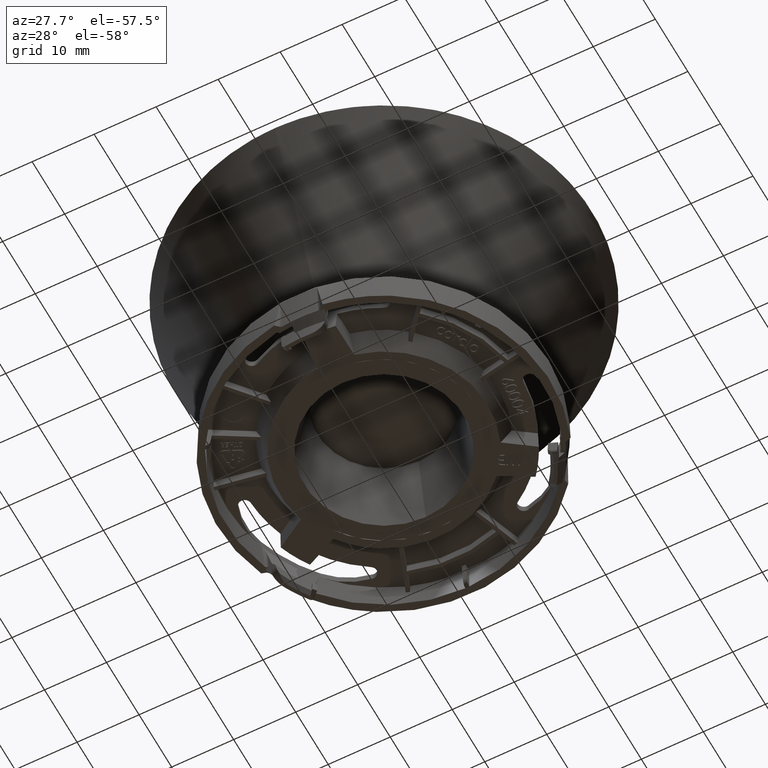
[diagram: clean part render]
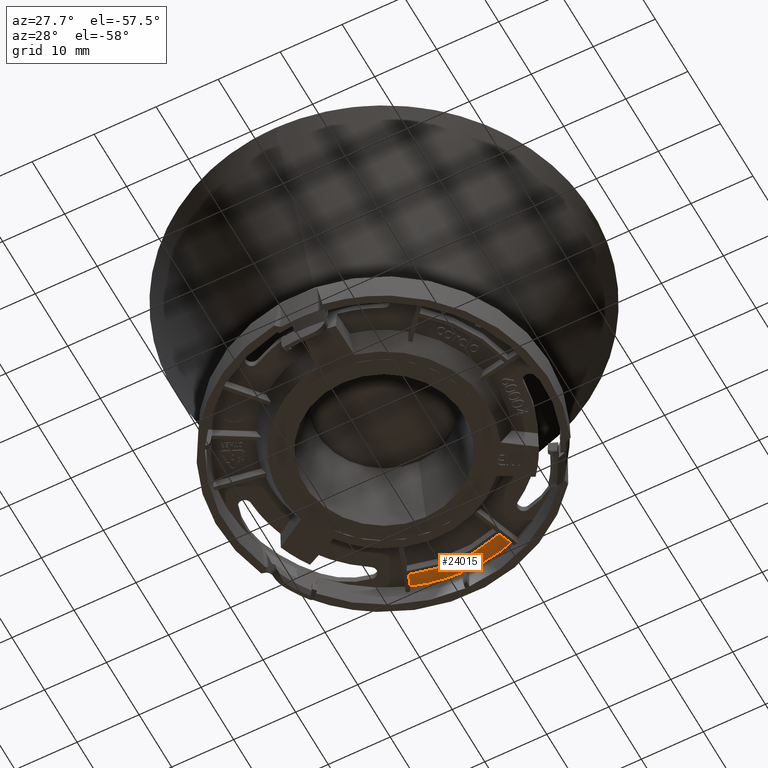
[diagram: same view with one face highlighted and labeled with its STEP entity id]
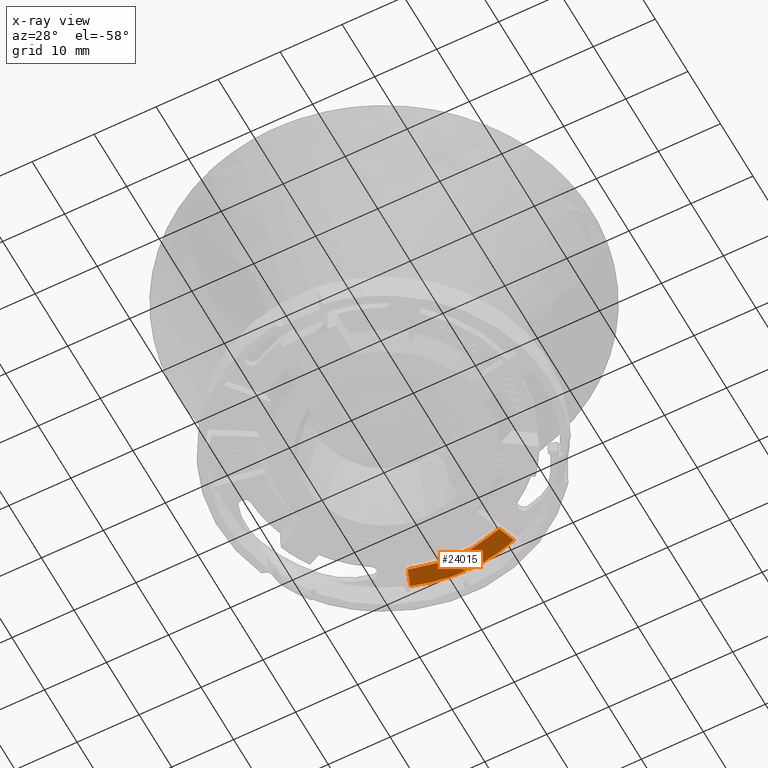
[diagram: x-ray of the same camera — body ghosted, the highlighted face saturated]
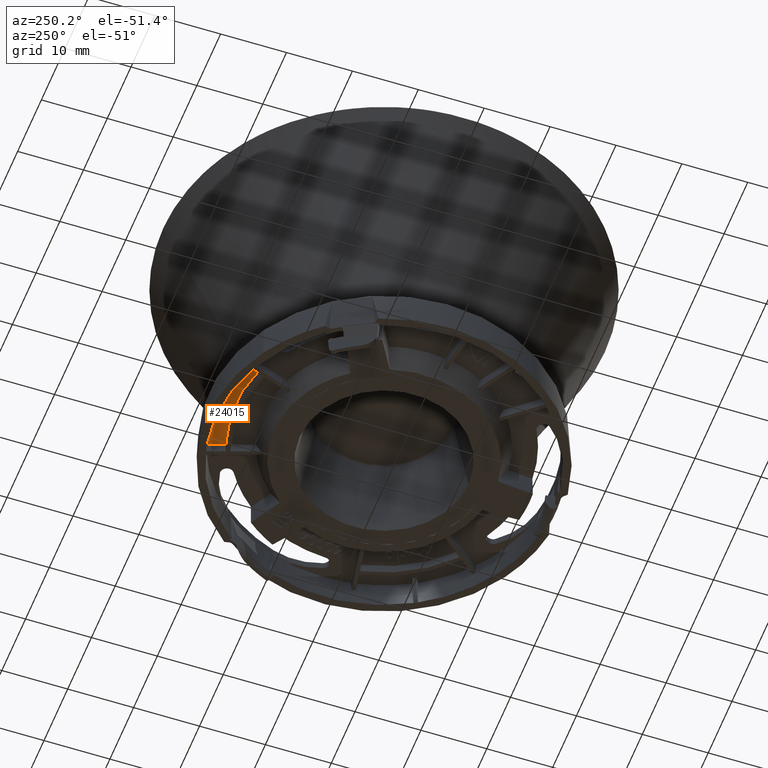
[diagram: same view with one face highlighted and labeled with its STEP entity id]
A machine part, auxiliary view. The second image highlights one B-rep face of the part: STEP entity #24015.
The next image is the same camera in x-ray: the body ghosted, the highlighted face saturated — about 0% of this face is hidden behind the body in this view.
A second angle (auxiliary view) of the same face is appended — the face is thin or edge-on in the first view.
In plain terms, the highlighted planar face has unit normal (0, 0, -1).
Its self-contained STEP definition (entity closure, byte-faithful):
#16 = DIRECTION ( 'NONE',  ( -0.4999999999999919500, -0.8660254037844432600, 0.0000000000000000000 ) ) ;
#110 = EDGE_CURVE ( 'NONE', #28848, #8737, #25101, .T. ) ;
#446 = CARTESIAN_POINT ( 'NONE',  ( 0.2999999999999227700, 24.42196238669079000, -3.299999999999998900 ) ) ;
#475 = DIRECTION ( 'NONE',  ( -0.3420201433256829200, 0.9396926207859032100, -0.0000000000000000000 ) ) ;
#1324 = EDGE_CURVE ( 'NONE', #3198, #8737, #22240, .T. ) ;
#1519 = CIRCLE ( 'NONE', #2665, 25.40124990929422600 ) ;
#1949 = DIRECTION ( 'NONE',  ( 0.05194690859252233000, 0.9986498478884779900, -0.0000000000000000000 ) ) ;
#2182 = VECTOR ( 'NONE', #475, 1000.000000000000100 ) ;
#2345 = CARTESIAN_POINT ( 'NONE',  ( -2.204364238465239300E-016, 0.0000000000000000000, -3.299999999999999800 ) ) ;
#2665 = AXIS2_PLACEMENT_3D ( 'NONE', #22761, #9230, #25040 ) ;
#3198 = VERTEX_POINT ( 'NONE', #12151 ) ;
#3963 = EDGE_CURVE ( 'NONE', #4081, #28848, #7368, .T. ) ;
#4066 = LINE ( 'NONE', #10224, #9319 ) ;
#4081 = VERTEX_POINT ( 'NONE', #446 ) ;
#4166 = ORIENTED_EDGE ( 'NONE', *, *, #27379, .F. ) ;
#4470 = EDGE_LOOP ( 'NONE', ( #13595, #4166, #6202, #19047, #13107, #25045, #11043, #15696 ) ) ;
#4620 = DIRECTION ( 'NONE',  ( 1.000000000000000000, 1.776356839400250500E-015, 0.0000000000000000000 ) ) ;
#4913 = VERTEX_POINT ( 'NONE', #20920 ) ;
#5521 = CARTESIAN_POINT ( 'NONE',  ( 0.0000000000000000000, -0.0000000000000000000, -3.299999999999997200 ) ) ;
#5777 = CARTESIAN_POINT ( 'NONE',  ( -7.581822303171009800E-014, 24.42196238669078700, -3.299999999999999800 ) ) ;
#6202 = ORIENTED_EDGE ( 'NONE', *, *, #20056, .T. ) ;
#7144 = FACE_OUTER_BOUND ( 'NONE', #4470, .T. ) ;
#7368 = LINE ( 'NONE', #24846, #18682 ) ;
#7382 = CIRCLE ( 'NONE', #10425, 22.60063511576303300 ) ;
#8737 = VERTEX_POINT ( 'NONE', #18042 ) ;
#9230 = DIRECTION ( 'NONE',  ( 0.0000000000000000000, 0.0000000000000000000, -1.000000000000000000 ) ) ;
#9319 = VECTOR ( 'NONE', #12492, 1000.000000000000100 ) ;
#10224 = CARTESIAN_POINT ( 'NONE',  ( 0.9677421278151605600, 0.05033917740141419900, -3.299999999999999800 ) ) ;
#10425 = AXIS2_PLACEMENT_3D ( 'NONE', #2345, #18147, #4620 ) ;
#11043 = ORIENTED_EDGE ( 'NONE', *, *, #1324, .T. ) ;
#11262 = CARTESIAN_POINT ( 'NONE',  ( 1.004868233440951000E-016, 1.740482835231747300E-016, -3.299999999999999800 ) ) ;
#12151 = CARTESIAN_POINT ( 'NONE',  ( 7.399452898592463700, 21.35501824952095300, -3.299999999999999800 ) ) ;
#12492 = DIRECTION ( 'NONE',  ( -0.05194690859252852600, 0.9986498478884775500, 0.0000000000000000000 ) ) ;
#12879 = CARTESIAN_POINT ( 'NONE',  ( 0.3508137170468309500, 25.39882726998141400, -3.299999999999997200 ) ) ;
#13107 = ORIENTED_EDGE ( 'NONE', *, *, #14077, .F. ) ;
#13521 = DIRECTION ( 'NONE',  ( 0.0000000000000000000, 0.0000000000000000000, 1.000000000000000000 ) ) ;
#13595 = ORIENTED_EDGE ( 'NONE', *, *, #3963, .F. ) ;
#13793 = VERTEX_POINT ( 'NONE', #25563 ) ;
#13978 = CARTESIAN_POINT ( 'NONE',  ( 0.3294892308709318500, 0.1199242725482896900, -3.299999999999999800 ) ) ;
#14077 = EDGE_CURVE ( 'NONE', #14588, #28502, #14168, .T. ) ;
#14168 = LINE ( 'NONE', #13978, #2182 ) ;
#14588 = VERTEX_POINT ( 'NONE', #23436 ) ;
#15499 = DIRECTION ( 'NONE',  ( 0.3420201433256623300, 0.9396926207859107600, 0.0000000000000000000 ) ) ;
#15696 = ORIENTED_EDGE ( 'NONE', *, *, #110, .F. ) ;
#15862 = CARTESIAN_POINT ( 'NONE',  ( -8.357422155819154600, 23.98701715228141800, -3.299999999999997200 ) ) ;
#16770 = DIRECTION ( 'NONE',  ( 0.4999999999999919000, 0.8660254037844432600, 0.0000000000000000000 ) ) ;
#18042 = CARTESIAN_POINT ( 'NONE',  ( 8.357422155818628800, 23.98701715228160900, -3.299999999999997200 ) ) ;
#18147 = DIRECTION ( 'NONE',  ( -0.0000000000000000000, -0.0000000000000000000, -1.000000000000000000 ) ) ;
#18682 = VECTOR ( 'NONE', #1949, 999.9999999999998900 ) ;
#19047 = ORIENTED_EDGE ( 'NONE', *, *, #24473, .F. ) ;
#20056 = EDGE_CURVE ( 'NONE', #4913, #13793, #4066, .T. ) ;
#20075 = AXIS2_PLACEMENT_3D ( 'NONE', #5521, #21311, #16770 ) ;
#20920 = CARTESIAN_POINT ( 'NONE',  ( -0.3000000000000770900, 24.42196238669079000, -3.299999999999999800 ) ) ;
#21311 = DIRECTION ( 'NONE',  ( 0.0000000000000000000, 0.0000000000000000000, -1.000000000000000000 ) ) ;
#22240 = LINE ( 'NONE', #26758, #28241 ) ;
#22761 = CARTESIAN_POINT ( 'NONE',  ( 0.0000000000000000000, -0.0000000000000000000, -3.299999999999997200 ) ) ;
#23436 = CARTESIAN_POINT ( 'NONE',  ( -7.399452898592933500, 21.35501824952078200, -3.299999999999999800 ) ) ;
#23469 = AXIS2_PLACEMENT_3D ( 'NONE', #11262, #13521, #16 ) ;
#23843 = DIRECTION ( 'NONE',  ( 1.000000000000000000, 3.108624468950437500E-015, -0.0000000000000000000 ) ) ;
#24015 = ADVANCED_FACE ( 'NONE', ( #7144 ), #24582, .T. ) ;
#24473 = EDGE_CURVE ( 'NONE', #28502, #13793, #1519, .T. ) ;
#24582 = PLANE ( 'NONE',  #23469 ) ;
#24739 = VECTOR ( 'NONE', #23843, 1000.000000000000000 ) ;
#24846 = CARTESIAN_POINT ( 'NONE',  ( -0.9677421278151635600, 0.05033917740140835000, -3.299999999999999800 ) ) ;
#25040 = DIRECTION ( 'NONE',  ( 0.4999999999999919000, 0.8660254037844432600, 0.0000000000000000000 ) ) ;
#25045 = ORIENTED_EDGE ( 'NONE', *, *, #28486, .T. ) ;
#25101 = CIRCLE ( 'NONE', #20075, 25.40124990929422600 ) ;
#25428 = LINE ( 'NONE', #5777, #24739 ) ;
#25563 = CARTESIAN_POINT ( 'NONE',  ( -0.3508137170469914400, 25.39882726998141400, -3.299999999999997200 ) ) ;
#26758 = CARTESIAN_POINT ( 'NONE',  ( -0.3294892308709375700, 0.1199242725482832600, -3.299999999999999800 ) ) ;
#27379 = EDGE_CURVE ( 'NONE', #4913, #4081, #25428, .T. ) ;
#28241 = VECTOR ( 'NONE', #15499, 999.9999999999998900 ) ;
#28486 = EDGE_CURVE ( 'NONE', #14588, #3198, #7382, .T. ) ;
#28502 = VERTEX_POINT ( 'NONE', #15862 ) ;
#28848 = VERTEX_POINT ( 'NONE', #12879 ) ;